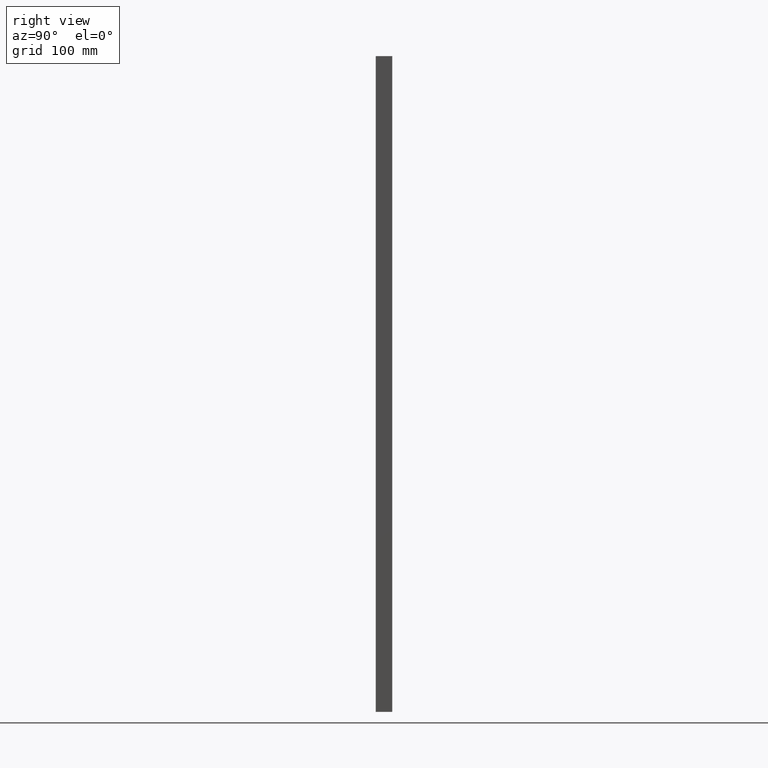
[diagram: clean part render]
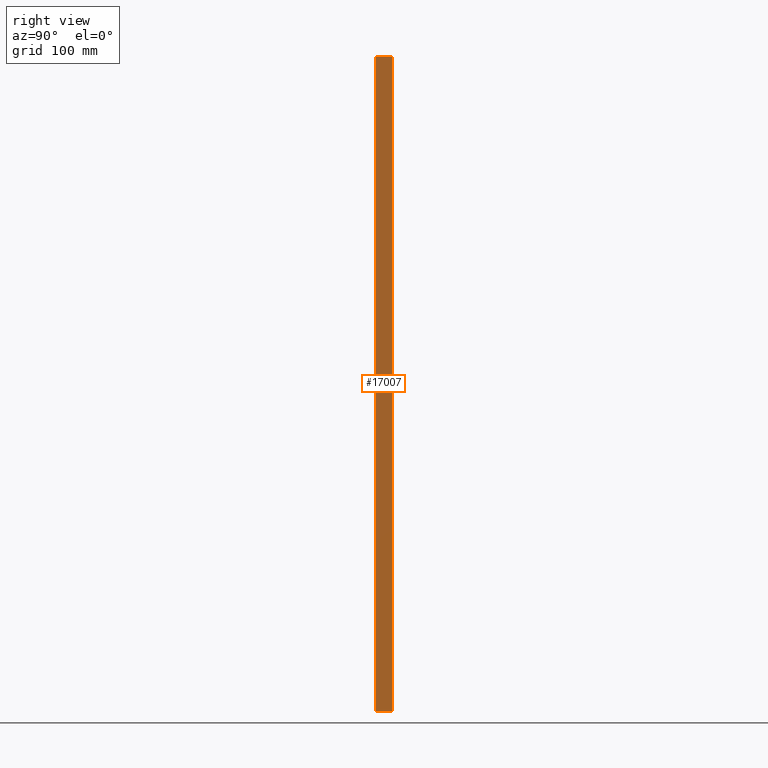
[diagram: same view with one face highlighted and labeled with its STEP entity id]
A machine part, right view. The second image highlights one B-rep face of the part: STEP entity #17007.
In plain terms, the highlighted planar face has unit normal (1, -0, -0).
Its self-contained STEP definition (entity closure, byte-faithful):
#720 = EDGE_CURVE ( 'NONE', #15558, #10730, #22726, .T. ) ;
#1025 = LINE ( 'NONE', #9316, #17229 ) ;
#1497 = FACE_OUTER_BOUND ( 'NONE', #23285, .T. ) ;
#3709 = LINE ( 'NONE', #20329, #12482 ) ;
#4498 = DIRECTION ( 'NONE',  ( 3.061616997868381700E-016, 1.000000000000000000, -3.061616997868382200E-016 ) ) ;
#4701 = EDGE_CURVE ( 'NONE', #24804, #10730, #1025, .T. ) ;
#5648 = DIRECTION ( 'NONE',  ( 1.405345600791337500E-016, 0.0000000000000000000, 1.000000000000000000 ) ) ;
#7762 = VECTOR ( 'NONE', #15236, 1000.000000000000000 ) ;
#8884 = LINE ( 'NONE', #43961, #48715 ) ;
#9316 = CARTESIAN_POINT ( 'NONE',  ( 390.0000000000001100, -10.00000000000000000, -790.0000000000000000 ) ) ;
#10390 = CARTESIAN_POINT ( 'NONE',  ( 390.0000000000000000, 9.999999999999895200, -790.0000000000000000 ) ) ;
#10730 = VERTEX_POINT ( 'NONE', #22156 ) ;
#12482 = VECTOR ( 'NONE', #4498, 1000.000000000000000 ) ;
#15236 = DIRECTION ( 'NONE',  ( -3.061616997868383100E-016, -1.000000000000000000, -3.061616997868382200E-016 ) ) ;
#15509 = VERTEX_POINT ( 'NONE', #24926 ) ;
#15558 = VERTEX_POINT ( 'NONE', #37183 ) ;
#16560 = DIRECTION ( 'NONE',  ( 1.405345600791337500E-016, 0.0000000000000000000, 1.000000000000000000 ) ) ;
#17007 = ADVANCED_FACE ( 'NONE', ( #1497 ), #38281, .T. ) ;
#17229 = VECTOR ( 'NONE', #5648, 1000.000000000000000 ) ;
#20329 = CARTESIAN_POINT ( 'NONE',  ( 390.0000000000000000, 9.999999999999895200, -790.0000000000000000 ) ) ;
#22156 = CARTESIAN_POINT ( 'NONE',  ( 390.0000000000002300, -10.00000000000000000, 0.0000000000000000000 ) ) ;
#22726 = LINE ( 'NONE', #31014, #7762 ) ;
#23285 = EDGE_LOOP ( 'NONE', ( #45535, #49076, #48993, #34631 ) ) ;
#24804 = VERTEX_POINT ( 'NONE', #37345 ) ;
#24926 = CARTESIAN_POINT ( 'NONE',  ( 390.0000000000001100, 10.00000000000000200, -790.0000000000000000 ) ) ;
#30169 = EDGE_CURVE ( 'NONE', #15509, #15558, #8884, .T. ) ;
#31014 = CARTESIAN_POINT ( 'NONE',  ( 390.0000000000001100, 9.999999999999653600, 0.0000000000000000000 ) ) ;
#33528 = AXIS2_PLACEMENT_3D ( 'NONE', #10390, #42300, #50297 ) ;
#34631 = ORIENTED_EDGE ( 'NONE', *, *, #48038, .T. ) ;
#37183 = CARTESIAN_POINT ( 'NONE',  ( 390.0000000000002300, 10.00000000000000200, 0.0000000000000000000 ) ) ;
#37345 = CARTESIAN_POINT ( 'NONE',  ( 390.0000000000001100, -10.00000000000000000, -790.0000000000000000 ) ) ;
#38281 = PLANE ( 'NONE',  #33528 ) ;
#42300 = DIRECTION ( 'NONE',  ( 1.000000000000000000, -3.061616997868382600E-016, -1.405345600791337500E-016 ) ) ;
#43961 = CARTESIAN_POINT ( 'NONE',  ( 390.0000000000001100, 10.00000000000000200, -790.0000000000000000 ) ) ;
#45535 = ORIENTED_EDGE ( 'NONE', *, *, #30169, .T. ) ;
#48038 = EDGE_CURVE ( 'NONE', #24804, #15509, #3709, .T. ) ;
#48715 = VECTOR ( 'NONE', #16560, 1000.000000000000000 ) ;
#48993 = ORIENTED_EDGE ( 'NONE', *, *, #4701, .F. ) ;
#49076 = ORIENTED_EDGE ( 'NONE', *, *, #720, .T. ) ;
#50297 = DIRECTION ( 'NONE',  ( 3.061616997868382600E-016, 1.000000000000000000, 0.0000000000000000000 ) ) ;